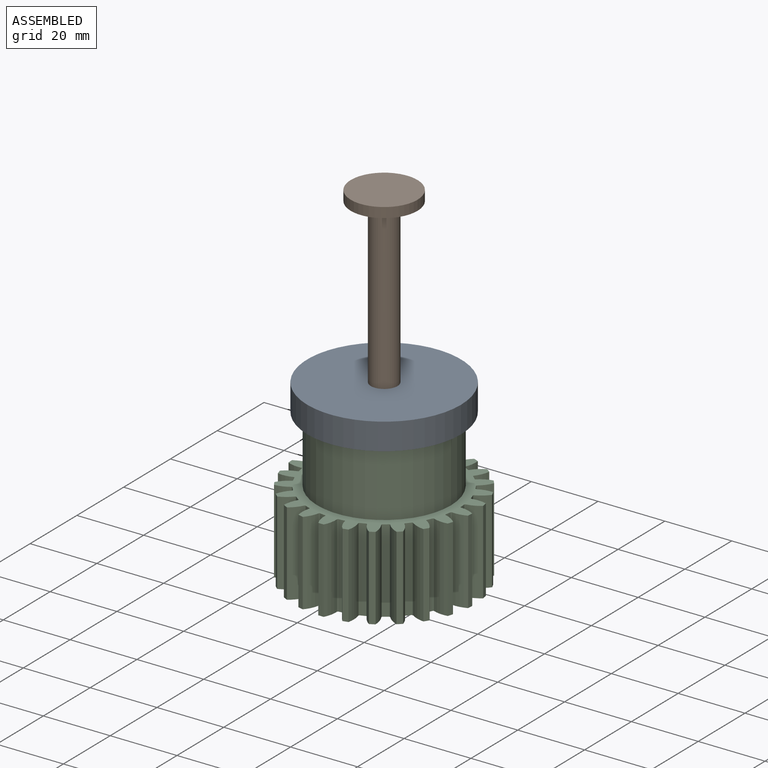
[diagram: assembled view]
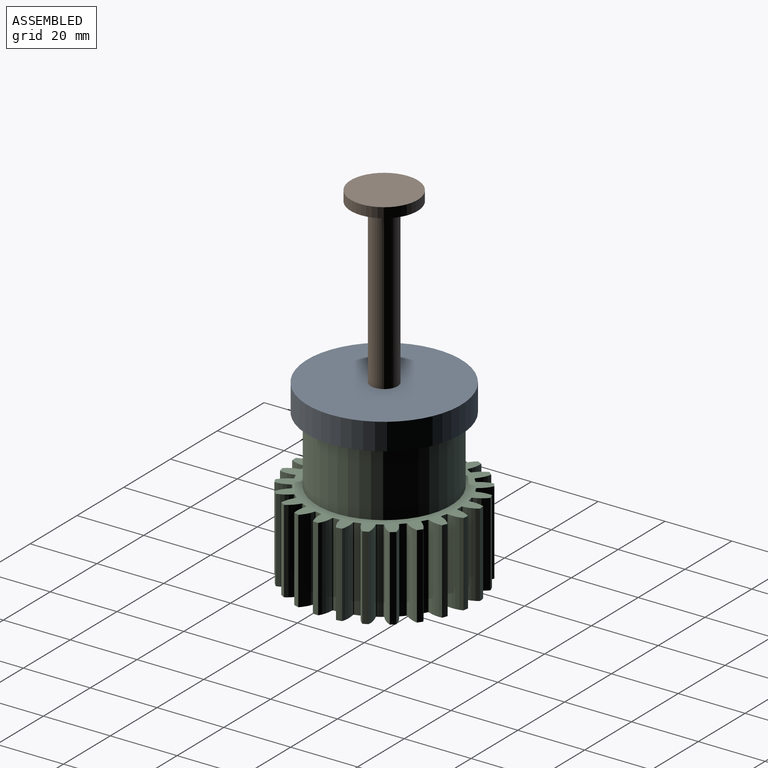
[diagram: assembled view, second angle]
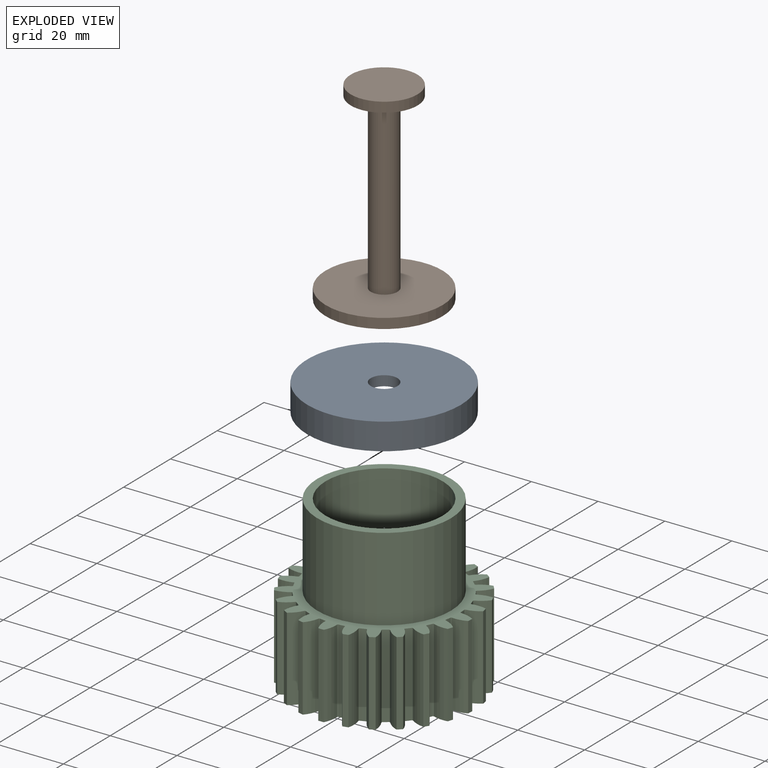
[diagram: exploded view]
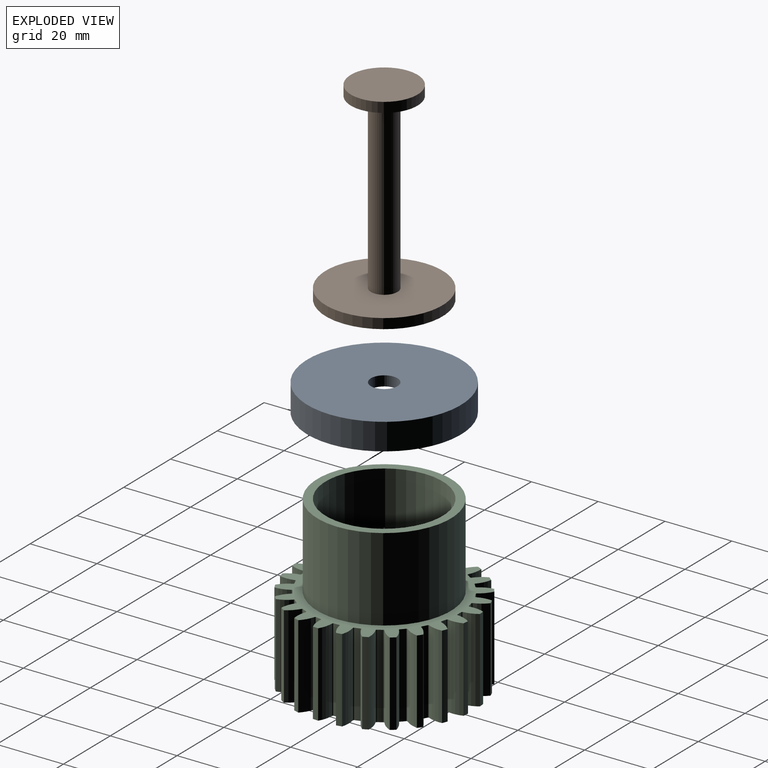
[diagram: exploded view, second angle]
ASSEMBLY  parts=3 mates=3
PART A: 6 faces, bbox 46x46x8 mm
  f0: cylinder r=4mm len=8mm, axis (0,0,1), area 75.4mm2, adj f1,f2
  f1: plane 40x40mm, normal (0,0,-1), area 1206.4mm2, adj f0,f3
  f2: plane 46x46mm, normal (0,0,1), area 1611.6mm2, adj f0,f4
  f3: cylinder r=20mm len=40mm, axis (0,0,1), area 628.3mm2, adj f1,f5
  f4: cylinder r=23mm len=46mm, axis (0,0,1), area 1156.1mm2, adj f2,f5
  f5: plane 46x46mm, normal (0,0,-1), area 405.3mm2, adj f3,f4
PART B: 7 faces, bbox 35x35x58 mm
  f0: cylinder r=17.5mm len=35mm, axis (0,0,-1), area 329.9mm2, adj f1,f2
  f1: plane 35x35mm, normal (0,0,1), area 911.8mm2, adj f0,f3
  f2: plane 35x35mm, normal (0,0,-1), area 962.1mm2, adj f0
  f3: cylinder r=4mm len=52mm, axis (0,0,-1), area 1306.9mm2, adj f1,f6
  f4: cylinder r=10mm len=20mm, axis (0,0,-1), area 188.5mm2, adj f5,f6
  f5: plane 20x20mm, normal (0,0,1), area 314.2mm2, adj f4
  f6: plane 20x20mm, normal (0,0,-1), area 263.9mm2, adj f3,f4
PART C: 157 faces, bbox 54x53.9x50 mm
  f0: cylinder r=27mm len=25mm, axis (0,0,-1), area 41mm2, adj f24,f25,f33,f91
  f1: cylinder r=27mm len=25mm, axis (0,0,-1), area 41mm2, adj f24,f25,f94,f149
  f2: cylinder r=27mm len=25mm, axis (0,0,-1), area 41mm2, adj f24,f25,f86,f101
  f3: cylinder r=27mm len=25mm, axis (0,0,-1), area 41mm2, adj f24,f25,f99,f106
  f4: cylinder r=27mm len=25mm, axis (0,0,-1), area 41mm2, adj f24,f25,f81,f140
  f5: cylinder r=27mm len=25mm, axis (0,0,-1), area 41mm2, adj f24,f25,f73,f104
  f6: cylinder r=27mm len=25mm, axis (0,0,-1), area 41mm2, adj f24,f25,f76,f111
  f7: cylinder r=27mm len=25mm, axis (0,0,-1), area 41mm2, adj f24,f25,f68,f109
  f8: cylinder r=27mm len=25mm, axis (0,0,-1), area 41mm2, adj f24,f25,f71,f116
  f9: cylinder r=27mm len=25mm, axis (0,0,-1), area 41mm2, adj f24,f25,f63,f114
  f10: cylinder r=27mm len=25mm, axis (0,0,-1), area 41mm2, adj f24,f25,f66,f121
  f11: cylinder r=27mm len=25mm, axis (0,0,-1), area 41mm2, adj f24,f25,f58,f119
  f12: cylinder r=27mm len=25mm, axis (0,0,-1), area 41mm2, adj f24,f25,f61,f126
  f13: cylinder r=27mm len=25mm, axis (0,0,-1), area 41mm2, adj f24,f25,f53,f124
  f14: cylinder r=27mm len=25mm, axis (0,0,-1), area 41mm2, adj f24,f25,f56,f131
  f15: cylinder r=27mm len=25mm, axis (0,0,-1), area 41mm2, adj f24,f25,f48,f129
  f16: cylinder r=27mm len=25mm, axis (0,0,-1), area 41mm2, adj f24,f25,f51,f135
  f17: cylinder r=27mm len=25mm, axis (0,0,-1), area 41mm2, adj f24,f25,f43,f132
  f18: cylinder r=27mm len=25mm, axis (0,0,-1), area 41mm2, adj f24,f25,f46,f78
  f19: cylinder r=27mm len=25mm, axis (0,0,-1), area 41mm2, adj f24,f25,f38,f137
  f20: cylinder r=27mm len=25mm, axis (0,0,-1), area 41mm2, adj f24,f25,f41,f96
  f21: cylinder r=27mm len=25mm, axis (0,0,-1), area 41mm2, adj f24,f25,f88,f142
  f22: cylinder r=27mm len=25mm, axis (0,0,-1), area 41mm2, adj f24,f25,f35,f83
  f23: cylinder r=27mm len=25mm, axis (0,0,-1), area 41mm2, adj f24,f25,f29,f148
  f24: plane 53.97x53.88mm, normal (0,0,1), area 675.1mm2, adj f0,f1,f2,f3,f4,f5,f6,f7
  f25: plane 53.97x53.88mm, normal (0,0,-1), area 1912.1mm2, adj f0,f1,f2,f3,f4,f5,f6,f7
  f26: cylinder r=27mm len=25mm, axis (0,0,-1), area 41mm2, adj f24,f25,f28,f145
  f27: cylinder r=22.5mm len=25mm, axis (0,0,1), area 39.1mm2, adj f24,f25,f30,f31
  f28: cylinder r=8.41mm len=25mm, axis (0,0,1), area 110.6mm2, adj f24,f25,f26,f30
  f29: cylinder r=8.41mm len=25mm, axis (0,0,1), area 110.6mm2, adj f23,f24,f25,f31
  f30: cylinder r=0.3mm len=25mm, axis (0,0,-1), area 11.4mm2, adj f24,f25,f27,f28
  f31: cylinder r=0.3mm len=25mm, axis (0,0,-1), area 11.4mm2, adj f24,f25,f27,f29
  f32: cylinder r=0.3mm len=25mm, axis (0,0,-1), area 11.4mm2, adj f24,f25,f33,f36
  f33: cylinder r=8.41mm len=25mm, axis (0,0,1), area 110.6mm2, adj f0,f24,f25,f32
  f34: cylinder r=0.3mm len=25mm, axis (0,0,-1), area 11.4mm2, adj f24,f25,f35,f36
  f35: cylinder r=8.41mm len=25mm, axis (0,0,1), area 110.6mm2, adj f22,f24,f25,f34
  f36: cylinder r=22.5mm len=25mm, axis (0,0,1), area 39.1mm2, adj f24,f25,f32,f34
  f37: cylinder r=0.3mm len=25mm, axis (0,0,-1), area 11.4mm2, adj f24,f25,f38,f40
  f38: cylinder r=8.41mm len=25mm, axis (0,0,1), area 110.6mm2, adj f19,f24,f25,f37
  f39: cylinder r=0.3mm len=25mm, axis (0,0,-1), area 11.4mm2, adj f24,f25,f40,f41
  f40: cylinder r=22.5mm len=25mm, axis (0,0,1), area 39.1mm2, adj f24,f25,f37,f39
  f41: cylinder r=8.41mm len=25mm, axis (0,0,1), area 110.6mm2, adj f20,f24,f25,f39
  f42: cylinder r=0.3mm len=25mm, axis (0,0,-1), area 11.4mm2, adj f24,f25,f43,f45
  f43: cylinder r=8.41mm len=25mm, axis (0,0,1), area 110.6mm2, adj f17,f24,f25,f42
  f44: cylinder r=0.3mm len=25mm, axis (0,0,-1), area 11.4mm2, adj f24,f25,f45,f46
  f45: cylinder r=22.5mm len=25mm, axis (0,0,1), area 39.1mm2, adj f24,f25,f42,f44
  f46: cylinder r=8.41mm len=25mm, axis (0,0,1), area 110.6mm2, adj f18,f24,f25,f44
  f47: cylinder r=0.3mm len=25mm, axis (0,0,-1), area 11.4mm2, adj f24,f25,f48,f50
  f48: cylinder r=8.41mm len=25mm, axis (0,0,1), area 110.6mm2, adj f15,f24,f25,f47
  f49: cylinder r=0.3mm len=25mm, axis (0,0,-1), area 11.4mm2, adj f24,f25,f50,f51
  f50: cylinder r=22.5mm len=25mm, axis (0,0,1), area 39.1mm2, adj f24,f25,f47,f49
  f51: cylinder r=8.41mm len=25mm, axis (0,0,1), area 110.6mm2, adj f16,f24,f25,f49
  f52: cylinder r=0.3mm len=25mm, axis (0,0,-1), area 11.4mm2, adj f24,f25,f53,f55
  f53: cylinder r=8.41mm len=25mm, axis (0,0,1), area 110.6mm2, adj f13,f24,f25,f52
  f54: cylinder r=0.3mm len=25mm, axis (0,0,-1), area 11.4mm2, adj f24,f25,f55,f56
  f55: cylinder r=22.5mm len=25mm, axis (0,0,1), area 39.1mm2, adj f24,f25,f52,f54
  f56: cylinder r=8.41mm len=25mm, axis (0,0,1), area 110.6mm2, adj f14,f24,f25,f54
  f57: cylinder r=0.3mm len=25mm, axis (0,0,-1), area 11.4mm2, adj f24,f25,f58,f60
  f58: cylinder r=8.41mm len=25mm, axis (0,0,1), area 110.6mm2, adj f11,f24,f25,f57
  f59: cylinder r=0.3mm len=25mm, axis (0,0,-1), area 11.4mm2, adj f24,f25,f60,f61
  f60: cylinder r=22.5mm len=25mm, axis (0,0,1), area 39.1mm2, adj f24,f25,f57,f59
  f61: cylinder r=8.41mm len=25mm, axis (0,0,1), area 110.6mm2, adj f12,f24,f25,f59
  f62: cylinder r=0.3mm len=25mm, axis (0,0,-1), area 11.4mm2, adj f24,f25,f63,f65
  f63: cylinder r=8.41mm len=25mm, axis (0,0,1), area 110.6mm2, adj f9,f24,f25,f62
  f64: cylinder r=0.3mm len=25mm, axis (0,0,-1), area 11.4mm2, adj f24,f25,f65,f66
  f65: cylinder r=22.5mm len=25mm, axis (0,0,1), area 39.1mm2, adj f24,f25,f62,f64
  f66: cylinder r=8.41mm len=25mm, axis (0,0,1), area 110.6mm2, adj f10,f24,f25,f64
  f67: cylinder r=0.3mm len=25mm, axis (0,0,-1), area 11.4mm2, adj f24,f25,f68,f70
  f68: cylinder r=8.41mm len=25mm, axis (0,0,1), area 110.6mm2, adj f7,f24,f25,f67
  f69: cylinder r=0.3mm len=25mm, axis (0,0,-1), area 11.4mm2, adj f24,f25,f70,f71
  f70: cylinder r=22.5mm len=25mm, axis (0,0,1), area 39.1mm2, adj f24,f25,f67,f69
  f71: cylinder r=8.41mm len=25mm, axis (0,0,1), area 110.6mm2, adj f8,f24,f25,f69
  f72: cylinder r=0.3mm len=25mm, axis (0,0,-1), area 11.4mm2, adj f24,f25,f73,f75
  f73: cylinder r=8.41mm len=25mm, axis (0,0,1), area 110.6mm2, adj f5,f24,f25,f72
  f74: cylinder r=0.3mm len=25mm, axis (0,0,-1), area 11.4mm2, adj f24,f25,f75,f76
  f75: cylinder r=22.5mm len=25mm, axis (0,0,1), area 39.1mm2, adj f24,f25,f72,f74
  f76: cylinder r=8.41mm len=25mm, axis (0,0,1), area 110.6mm2, adj f6,f24,f25,f74
  f77: cylinder r=0.3mm len=25mm, axis (0,0,-1), area 11.4mm2, adj f24,f25,f78,f80
  f78: cylinder r=8.41mm len=25mm, axis (0,0,1), area 110.6mm2, adj f18,f24,f25,f77
  f79: cylinder r=0.3mm len=25mm, axis (0,0,-1), area 11.4mm2, adj f24,f25,f80,f81
  f80: cylinder r=22.5mm len=25mm, axis (0,0,1), area 39.1mm2, adj f24,f25,f77,f79
  f81: cylinder r=8.41mm len=25mm, axis (0,0,1), area 110.6mm2, adj f4,f24,f25,f79
  f82: cylinder r=0.3mm len=25mm, axis (0,0,-1), area 11.4mm2, adj f24,f25,f83,f85
  f83: cylinder r=8.41mm len=25mm, axis (0,0,1), area 110.6mm2, adj f22,f24,f25,f82
  f84: cylinder r=0.3mm len=25mm, axis (0,0,-1), area 11.4mm2, adj f24,f25,f85,f86
  f85: cylinder r=22.5mm len=25mm, axis (0,0,1), area 39.1mm2, adj f24,f25,f82,f84
  f86: cylinder r=8.41mm len=25mm, axis (0,0,1), area 110.6mm2, adj f2,f24,f25,f84
  f87: cylinder r=0.3mm len=25mm, axis (0,0,-1), area 11.4mm2, adj f24,f25,f88,f90
  f88: cylinder r=8.41mm len=25mm, axis (0,0,1), area 110.6mm2, adj f21,f24,f25,f87
  f89: cylinder r=0.3mm len=25mm, axis (0,0,-1), area 11.4mm2, adj f24,f25,f90,f91
  f90: cylinder r=22.5mm len=25mm, axis (0,0,1), area 39.1mm2, adj f24,f25,f87,f89
  f91: cylinder r=8.41mm len=25mm, axis (0,0,1), area 110.6mm2, adj f0,f24,f25,f89
  f92: cylinder r=22.5mm len=25mm, axis (0,0,1), area 39.1mm2, adj f24,f25,f93,f95
  f93: cylinder r=0.3mm len=25mm, axis (0,0,-1), area 11.4mm2, adj f24,f25,f92,f94
  f94: cylinder r=8.41mm len=25mm, axis (0,0,1), area 110.6mm2, adj f1,f24,f25,f93
  f95: cylinder r=0.3mm len=25mm, axis (0,0,-1), area 11.4mm2, adj f24,f25,f92,f96
  f96: cylinder r=8.41mm len=25mm, axis (0,0,1), area 110.6mm2, adj f20,f24,f25,f95
  f97: cylinder r=22.5mm len=25mm, axis (0,0,1), area 39.1mm2, adj f24,f25,f98,f100
  f98: cylinder r=0.3mm len=25mm, axis (0,0,-1), area 11.4mm2, adj f24,f25,f97,f99
  f99: cylinder r=8.41mm len=25mm, axis (0,0,1), area 110.6mm2, adj f3,f24,f25,f98
  f100: cylinder r=0.3mm len=25mm, axis (0,0,-1), area 11.4mm2, adj f24,f25,f97,f101
  f101: cylinder r=8.41mm len=25mm, axis (0,0,1), area 110.6mm2, adj f2,f24,f25,f100
  f102: cylinder r=22.5mm len=25mm, axis (0,0,1), area 39.1mm2, adj f24,f25,f103,f105
  f103: cylinder r=0.3mm len=25mm, axis (0,0,-1), area 11.4mm2, adj f24,f25,f102,f104
  f104: cylinder r=8.41mm len=25mm, axis (0,0,1), area 110.6mm2, adj f5,f24,f25,f103
  f105: cylinder r=0.3mm len=25mm, axis (0,0,-1), area 11.4mm2, adj f24,f25,f102,f106
  f106: cylinder r=8.41mm len=25mm, axis (0,0,1), area 110.6mm2, adj f3,f24,f25,f105
  f107: cylinder r=22.5mm len=25mm, axis (0,0,1), area 39.1mm2, adj f24,f25,f108,f110
  f108: cylinder r=0.3mm len=25mm, axis (0,0,-1), area 11.4mm2, adj f24,f25,f107,f109
  f109: cylinder r=8.41mm len=25mm, axis (0,0,1), area 110.6mm2, adj f7,f24,f25,f108
  f110: cylinder r=0.3mm len=25mm, axis (0,0,-1), area 11.4mm2, adj f24,f25,f107,f111
  f111: cylinder r=8.41mm len=25mm, axis (0,0,1), area 110.6mm2, adj f6,f24,f25,f110
  f112: cylinder r=22.5mm len=25mm, axis (0,0,1), area 39.1mm2, adj f24,f25,f113,f115
  f113: cylinder r=0.3mm len=25mm, axis (0,0,-1), area 11.4mm2, adj f24,f25,f112,f114
  f114: cylinder r=8.41mm len=25mm, axis (0,0,1), area 110.6mm2, adj f9,f24,f25,f113
  f115: cylinder r=0.3mm len=25mm, axis (0,0,-1), area 11.4mm2, adj f24,f25,f112,f116
  f116: cylinder r=8.41mm len=25mm, axis (0,0,1), area 110.6mm2, adj f8,f24,f25,f115
  f117: cylinder r=22.5mm len=25mm, axis (0,0,1), area 39.1mm2, adj f24,f25,f118,f120
  f118: cylinder r=0.3mm len=25mm, axis (0,0,-1), area 11.4mm2, adj f24,f25,f117,f119
  f119: cylinder r=8.41mm len=25mm, axis (0,0,1), area 110.6mm2, adj f11,f24,f25,f118
  f120: cylinder r=0.3mm len=25mm, axis (0,0,-1), area 11.4mm2, adj f24,f25,f117,f121
  f121: cylinder r=8.41mm len=25mm, axis (0,0,1), area 110.6mm2, adj f10,f24,f25,f120
  f122: cylinder r=22.5mm len=25mm, axis (0,0,1), area 39.1mm2, adj f24,f25,f123,f125
  f123: cylinder r=0.3mm len=25mm, axis (0,0,-1), area 11.4mm2, adj f24,f25,f122,f124
  f124: cylinder r=8.41mm len=25mm, axis (0,0,1), area 110.6mm2, adj f13,f24,f25,f123
  f125: cylinder r=0.3mm len=25mm, axis (0,0,-1), area 11.4mm2, adj f24,f25,f122,f126
  f126: cylinder r=8.41mm len=25mm, axis (0,0,1), area 110.6mm2, adj f12,f24,f25,f125
  f127: cylinder r=22.5mm len=25mm, axis (0,0,1), area 39.1mm2, adj f24,f25,f128,f130
  f128: cylinder r=0.3mm len=25mm, axis (0,0,-1), area 11.4mm2, adj f24,f25,f127,f129
  f129: cylinder r=8.41mm len=25mm, axis (0,0,1), area 110.6mm2, adj f15,f24,f25,f128
  f130: cylinder r=0.3mm len=25mm, axis (0,0,-1), area 11.4mm2, adj f24,f25,f127,f131
  f131: cylinder r=8.41mm len=25mm, axis (0,0,1), area 110.6mm2, adj f14,f24,f25,f130
  f132: cylinder r=8.41mm len=25mm, axis (0,0,1), area 110.6mm2, adj f17,f24,f25,f134
  f133: cylinder r=22.5mm len=25mm, axis (0,0,1), area 39.1mm2, adj f24,f25,f134,f136
  f134: cylinder r=0.3mm len=25mm, axis (0,0,-1), area 11.4mm2, adj f24,f25,f132,f133
  f135: cylinder r=8.41mm len=25mm, axis (0,0,1), area 110.6mm2, adj f16,f24,f25,f136
  f136: cylinder r=0.3mm len=25mm, axis (0,0,-1), area 11.4mm2, adj f24,f25,f133,f135
  f137: cylinder r=8.41mm len=25mm, axis (0,0,1), area 110.6mm2, adj f19,f24,f25,f139
  f138: cylinder r=22.5mm len=25mm, axis (0,0,1), area 39.1mm2, adj f24,f25,f139,f141
  f139: cylinder r=0.3mm len=25mm, axis (0,0,-1), area 11.4mm2, adj f24,f25,f137,f138
  f140: cylinder r=8.41mm len=25mm, axis (0,0,1), area 110.6mm2, adj f4,f24,f25,f141
  f141: cylinder r=0.3mm len=25mm, axis (0,0,-1), area 11.4mm2, adj f24,f25,f138,f140
  f142: cylinder r=8.41mm len=25mm, axis (0,0,1), area 110.6mm2, adj f21,f24,f25,f144
  f143: cylinder r=22.5mm len=25mm, axis (0,0,1), area 39.1mm2, adj f24,f25,f144,f146
  f144: cylinder r=0.3mm len=25mm, axis (0,0,-1), area 11.4mm2, adj f24,f25,f142,f143
  f145: cylinder r=8.41mm len=25mm, axis (0,0,1), area 110.6mm2, adj f24,f25,f26,f146
  f146: cylinder r=0.3mm len=25mm, axis (0,0,-1), area 11.4mm2, adj f24,f25,f143,f145
  f147: cylinder r=22.5mm len=25mm, axis (0,0,1), area 39.1mm2, adj f24,f25,f150,f151
  f148: cylinder r=8.41mm len=25mm, axis (0,0,1), area 110.6mm2, adj f23,f24,f25,f150
  f149: cylinder r=8.41mm len=25mm, axis (0,0,1), area 110.6mm2, adj f1,f24,f25,f151
  f150: cylinder r=0.3mm len=25mm, axis (0,0,-1), area 11.4mm2, adj f24,f25,f147,f148
  f151: cylinder r=0.3mm len=25mm, axis (0,0,-1), area 11.4mm2, adj f24,f25,f147,f149
  f152: cylinder r=17.5mm len=47.5mm, axis (0,0,-1), area 5222.9mm2, adj f154,f155
  f153: cylinder r=20mm len=40mm, axis (0,0,-1), area 3141.6mm2, adj f24,f154
  f154: plane 40x40mm, normal (0,0,1), area 294.5mm2, adj f152,f153
  f155: plane 35x35mm, normal (0,0,1), area 942.5mm2, adj f152,f156
  f156: cylinder r=2.5mm len=5mm, axis (0,0,1), area 39.3mm2, adj f25,f155
PLACE A t=(0,0,53)mm
PLACE B t=(0,0,47)mm
PLACE C t=(0,0,12.5)mm
MATE slider B.f0 <-> C.f0  axis (0,0,-1) through (0,0,47)mm
MATE slider A.f0 <-> B.f0  axis (0,0,-1) through (0,0,50)mm
MATE slider A.f0 <-> C.f0  axis (0,0,-1) through (0,0,50)mm
